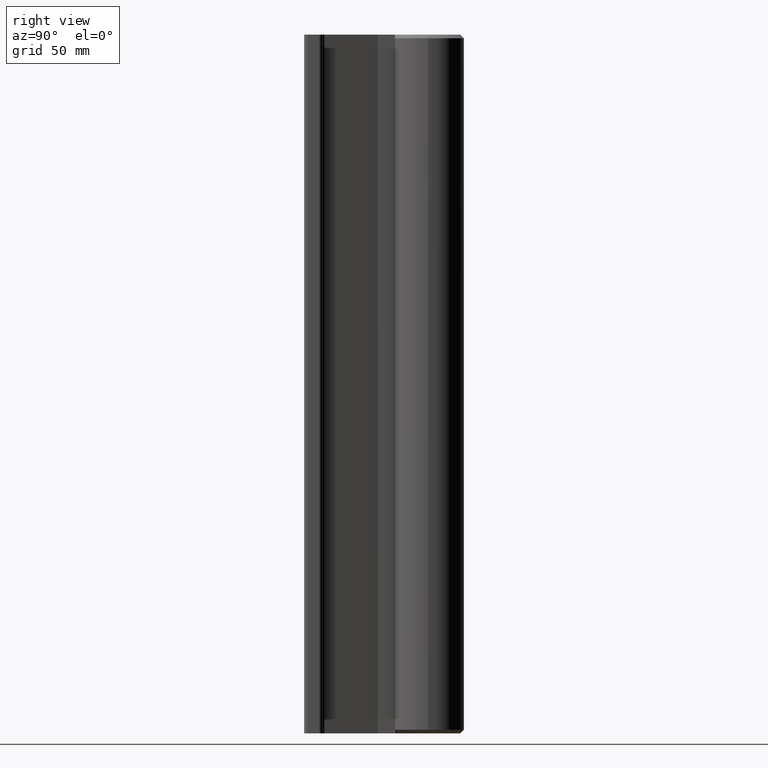
[diagram: clean part render]
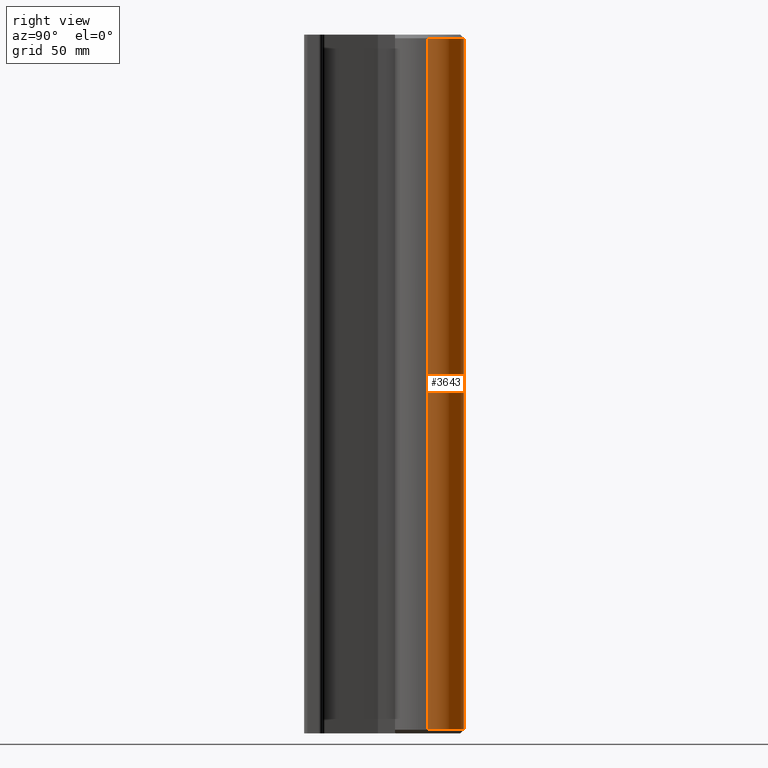
[diagram: same view with one face highlighted and labeled with its STEP entity id]
A machine part, right view. The second image highlights one B-rep face of the part: STEP entity #3643.
In plain terms, the highlighted cylindrical surface (edge-blend (fillet) strip) has radius 15.875 mm, axis along (0, 0, 1).
Its self-contained STEP definition (entity closure, byte-faithful):
#106 = VERTEX_POINT ( 'NONE', #2407 ) ;
#157 = ORIENTED_EDGE ( 'NONE', *, *, #700, .F. ) ;
#188 = ORIENTED_EDGE ( 'NONE', *, *, #2564, .T. ) ;
#333 = EDGE_LOOP ( 'NONE', ( #188, #1460, #3543, #157 ) ) ;
#340 = CIRCLE ( 'NONE', #2661, 0.6250000000000000000 ) ;
#346 = AXIS2_PLACEMENT_3D ( 'NONE', #1560, #4105, #3489 ) ;
#353 = DIRECTION ( 'NONE',  ( 0.000000000000000000, 0.000000000000000000, -1.000000000000000000 ) ) ;
#369 = CARTESIAN_POINT ( 'NONE',  ( 0.6250000000000000000, 2.125000000000000000, -11.99999999999999822 ) ) ;
#427 = EDGE_CURVE ( 'NONE', #2473, #647, #340, .T. ) ;
#475 = AXIS2_PLACEMENT_3D ( 'NONE', #868, #3393, #2816 ) ;
#636 = DIRECTION ( 'NONE',  ( 0.000000000000000000, 0.000000000000000000, 1.000000000000000000 ) ) ;
#647 = VERTEX_POINT ( 'NONE', #3529 ) ;
#700 = EDGE_CURVE ( 'NONE', #106, #647, #2860, .T. ) ;
#804 = VECTOR ( 'NONE', #636, 39.37007874015748143 ) ;
#833 = CARTESIAN_POINT ( 'NONE',  ( -0.6250000000000000000, 2.125000000000000000, -0.06250000000000076328 ) ) ;
#868 = CARTESIAN_POINT ( 'NONE',  ( 0.000000000000000000, 2.125000000000000000, -11.99999999999999822 ) ) ;
#997 = VECTOR ( 'NONE', #2892, 39.37007874015748143 ) ;
#1460 = ORIENTED_EDGE ( 'NONE', *, *, #3366, .T. ) ;
#1489 = VERTEX_POINT ( 'NONE', #2228 ) ;
#1518 = CARTESIAN_POINT ( 'NONE',  ( -0.6250000000000000000, 2.125000000000000000, -11.99999999999999822 ) ) ;
#1533 = FACE_OUTER_BOUND ( 'NONE', #333, .T. ) ;
#1560 = CARTESIAN_POINT ( 'NONE',  ( 0.000000000000000000, 2.125000000000000000, -11.93750000000000000 ) ) ;
#2228 = CARTESIAN_POINT ( 'NONE',  ( -0.6250000000000000000, 2.125000000000000000, -11.93750000000000000 ) ) ;
#2407 = CARTESIAN_POINT ( 'NONE',  ( 0.6250000000000000000, 2.125000000000000000, -11.93750000000000000 ) ) ;
#2463 = CIRCLE ( 'NONE', #346, 0.6250000000000000000 ) ;
#2473 = VERTEX_POINT ( 'NONE', #833 ) ;
#2564 = EDGE_CURVE ( 'NONE', #106, #1489, #2463, .T. ) ;
#2661 = AXIS2_PLACEMENT_3D ( 'NONE', #2899, #353, #3832 ) ;
#2786 = CYLINDRICAL_SURFACE ( 'NONE', #475, 0.6250000000000000000 ) ;
#2816 = DIRECTION ( 'NONE',  ( 1.000000000000000000, 0.000000000000000000, 0.000000000000000000 ) ) ;
#2860 = LINE ( 'NONE', #369, #997 ) ;
#2892 = DIRECTION ( 'NONE',  ( 0.000000000000000000, 0.000000000000000000, 1.000000000000000000 ) ) ;
#2899 = CARTESIAN_POINT ( 'NONE',  ( 0.000000000000000000, 2.125000000000000000, -0.06250000000000076328 ) ) ;
#3114 = LINE ( 'NONE', #1518, #804 ) ;
#3366 = EDGE_CURVE ( 'NONE', #1489, #2473, #3114, .T. ) ;
#3393 = DIRECTION ( 'NONE',  ( 0.000000000000000000, 0.000000000000000000, 1.000000000000000000 ) ) ;
#3489 = DIRECTION ( 'NONE',  ( 1.000000000000000000, 0.000000000000000000, 0.000000000000000000 ) ) ;
#3529 = CARTESIAN_POINT ( 'NONE',  ( 0.6250000000000000000, 2.125000000000000000, -0.06250000000000076328 ) ) ;
#3543 = ORIENTED_EDGE ( 'NONE', *, *, #427, .T. ) ;
#3643 = ADVANCED_FACE ( 'NONE', ( #1533 ), #2786, .T. ) ;
#3832 = DIRECTION ( 'NONE',  ( 1.000000000000000000, 0.000000000000000000, 0.000000000000000000 ) ) ;
#4105 = DIRECTION ( 'NONE',  ( -0.000000000000000000, -0.000000000000000000, 1.000000000000000000 ) ) ;